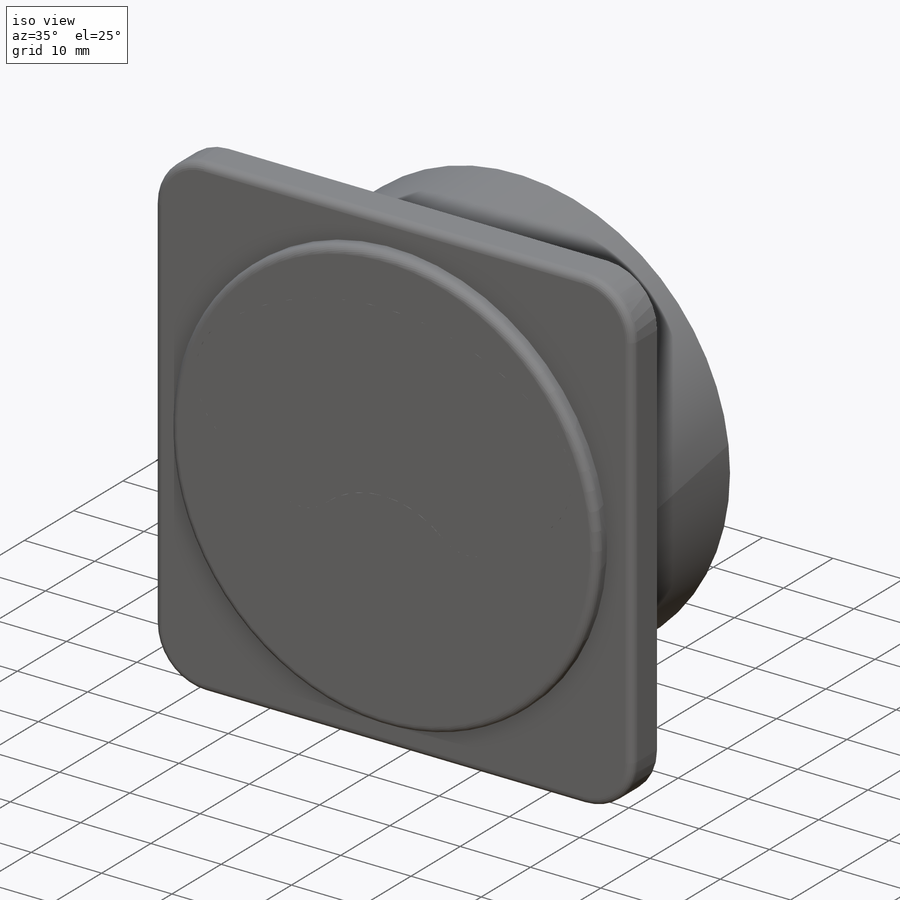
[diagram: iso view]
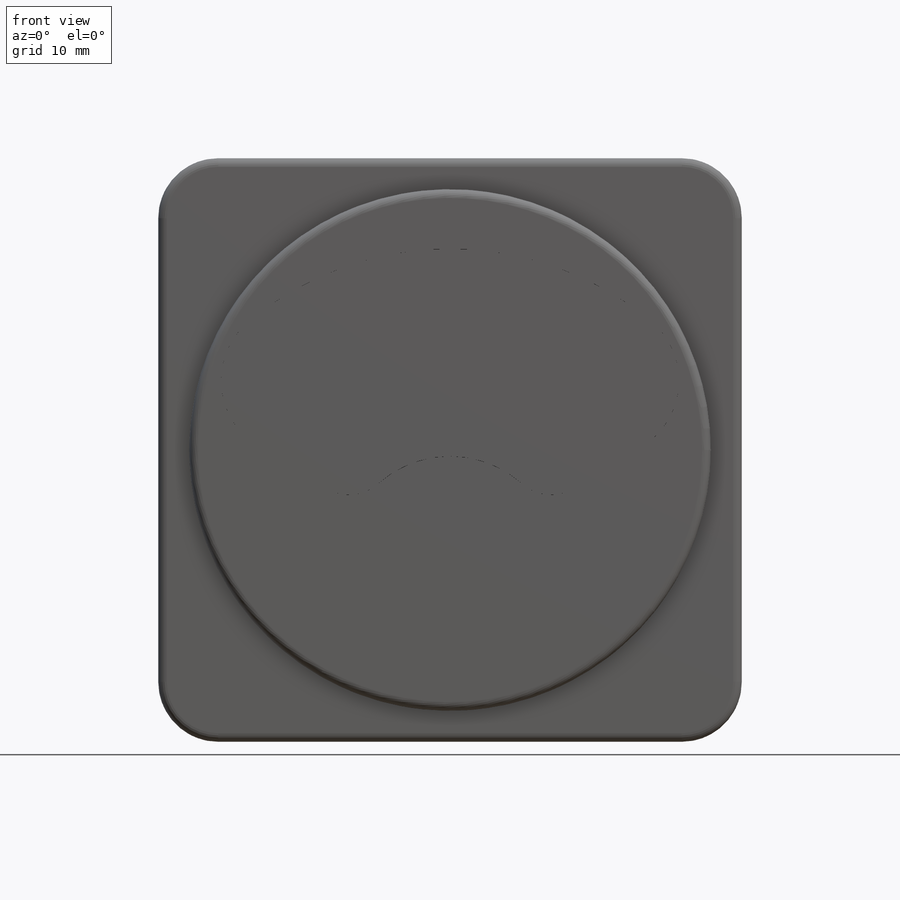
[diagram: front view]
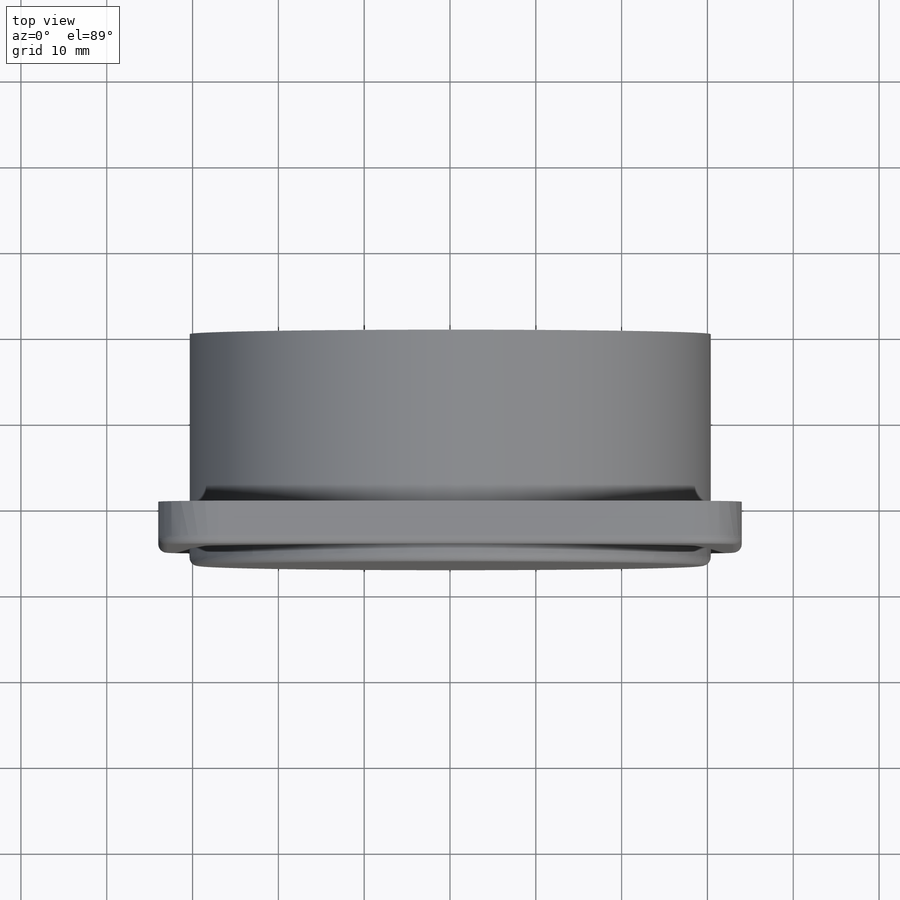
[diagram: top view]
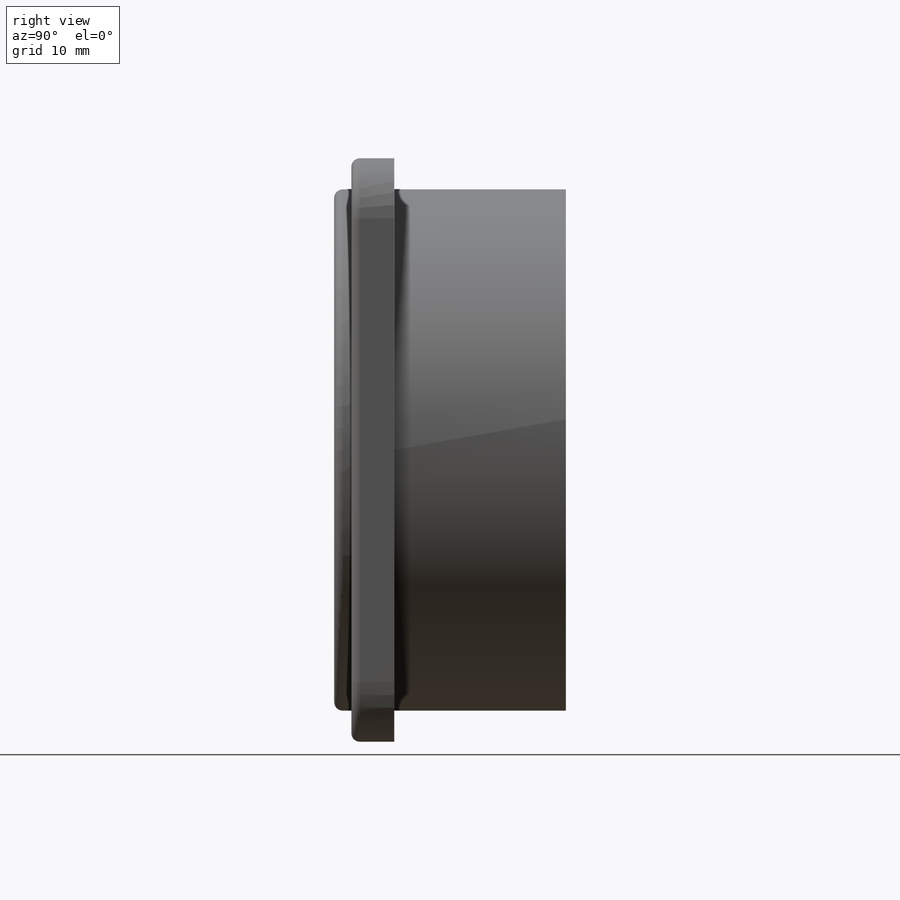
[diagram: right view]
SOLIDWORKS PART (.sldprt)
format: sldprt  version: not decoded by parser v0  size: 296,960 bytes
history: native  units: mm
features: sketch x5, extrude x5, fillet x2, material x1 (+13 scaffold rows collapsed)
feature tree (26):
  scaffold x13  (default folders/planes/origin — collapsed)
  material  "Material <not specified>"
  sketch  "Sketch1"
  extrude  "Boss-Extrude1"  Depth=20mm
  sketch  "Sketch2"  dims[c1.D1=~57.876773mm c1.D2=~60.765236mm c2.D1=55.0mm c2.D2=7.0mm c3.D1=2.0mm c3.D2=0.0mm c3.D3=68.0mm c3.D4=68.0mm]
  extrude  "Boss-Extrude2"  Depth=5mm
  sketch  "Sketch3"  dims[D1=9.0mm D2=5.0mm]
  extrude  "Boss-Extrude3"  Depth=2mm
  sketch  "Sketch4"  dims[D1=0.2mm D2=0.2mm]
  extrude  "Boss-Extrude4"  Depth=1mm
  sketch  "Sketch5"  dims[D1=5.0mm D2=9.0mm]
  extrude  "Boss-Extrude5"  Depth=1mm
  fillet  "Fillet1"  Radius=1mm
  fillet  "Fillet2"  Radius=1mm
decode coverage: 11 of 12 modeling features carry decoded parameters
note: ~ marks probable driven/reference dimensions
note: suppression state not decoded; provenance and decode notes live in map.json
